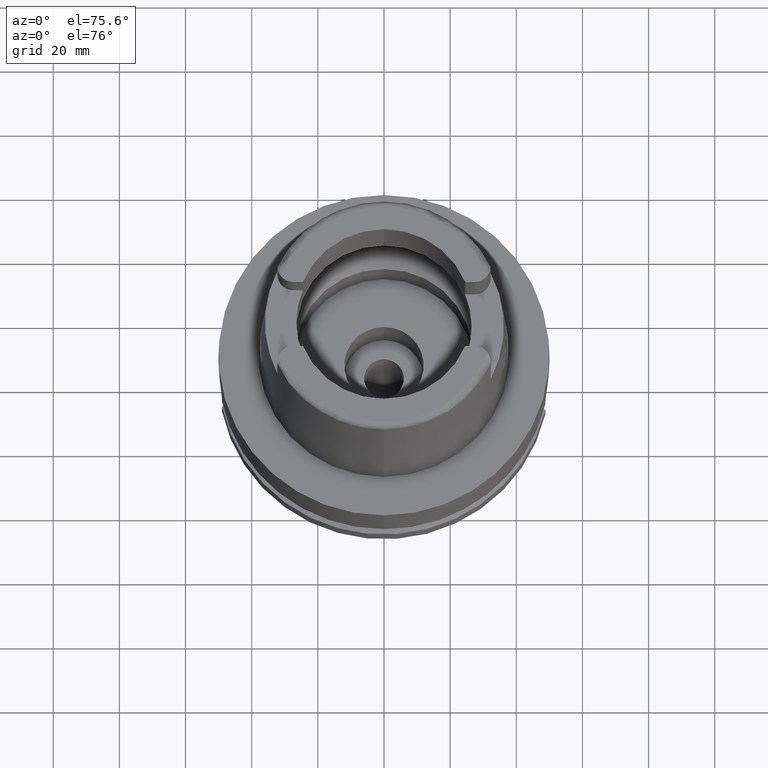
[diagram: clean part render]
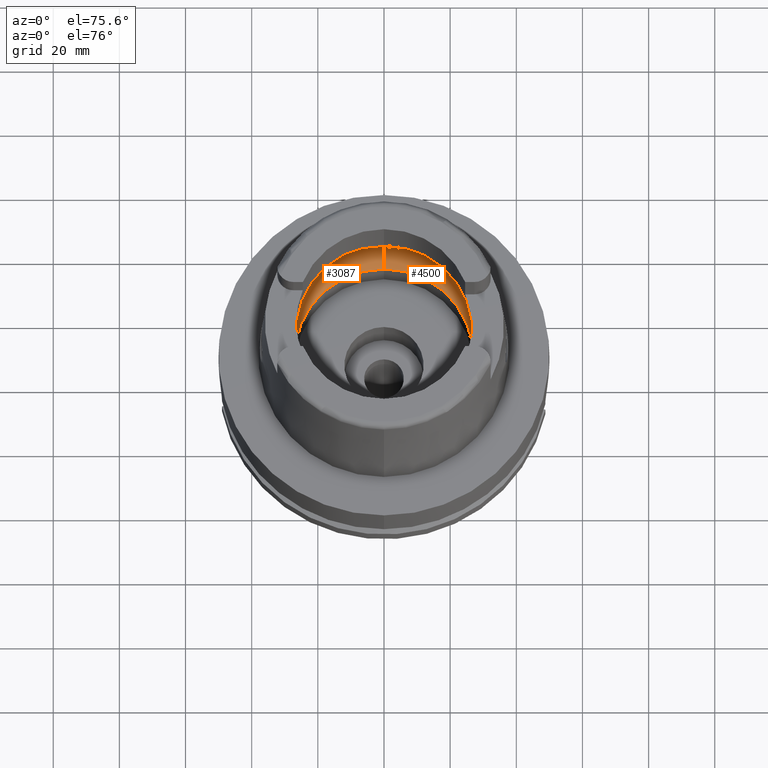
[diagram: same view with one multi-face feature highlighted, each face labeled with its STEP entity id]
A machine part, auxiliary view. The highlighted faces form ONE feature: a constant-radius fillet chain: 2 tangent blend faces with common blend radius 12 mm. The faces share edges in the B-rep.
Their STEP definitions:
[1] entity #4500 (Torus):
#33 = CARTESIAN_POINT ( 'NONE',  ( 0.0000000000000000000, 0.0000000000000000000, 9.496624327025999790 ) ) ;
#90 = DIRECTION ( 'NONE',  ( 0.0000000000000000000, 0.0000000000000000000, -1.000000000000000000 ) ) ;
#92 = CARTESIAN_POINT ( 'NONE',  ( 0.0000000000000000000, 0.0000000000000000000, 9.496624327025999790 ) ) ;
#177 = FACE_OUTER_BOUND ( 'NONE', #369, .T. ) ;
#223 = ORIENTED_EDGE ( 'NONE', *, *, #785, .F. ) ;
#264 = EDGE_CURVE ( 'NONE', #3488, #870, #3285, .T. ) ;
#369 = EDGE_LOOP ( 'NONE', ( #3491, #4534, #223, #3378, #2570, #2620, #1874 ) ) ;
#385 = DIRECTION ( 'NONE',  ( 0.0000000000000000000, 0.0000000000000000000, 1.000000000000000000 ) ) ;
#444 = EDGE_CURVE ( 'NONE', #964, #2511, #4327, .T. ) ;
#487 = DIRECTION ( 'NONE',  ( -1.000000000000000000, 0.0000000000000000000, 0.0000000000000000000 ) ) ;
#543 = CARTESIAN_POINT ( 'NONE',  ( 31.48971910754000447, 0.0000000000000000000, 9.000000000000000000 ) ) ;
#718 = CARTESIAN_POINT ( 'NONE',  ( 31.48971910753999026, -0.8697454017312684638, 8.999999999999998224 ) ) ;
#785 = EDGE_CURVE ( 'NONE', #2511, #3258, #3958, .T. ) ;
#832 = B_SPLINE_CURVE_WITH_KNOTS ( 'NONE', 3,
 ( #3060, #4162, #3383, #3741 ),
 .UNSPECIFIED., .F., .F.,
 ( 4, 4 ),
 ( 0.0000000000000000000, 1.000000000000000000 ),
 .UNSPECIFIED. ) ;
#870 = VERTEX_POINT ( 'NONE', #1261 ) ;
#891 = CARTESIAN_POINT ( 'NONE',  ( 0.0000000000000000000, 31.50000000000000000, 9.496624327025999790 ) ) ;
#910 = CARTESIAN_POINT ( 'NONE',  ( 0.0000000000000000000, -26.89999999999999858, 0.04993178413032000468 ) ) ;
#964 = VERTEX_POINT ( 'NONE', #910 ) ;
#980 = CARTESIAN_POINT ( 'NONE',  ( 31.40918884336000616, 2.390158196043999705, 9.496624327025999790 ) ) ;
#1115 = EDGE_CURVE ( 'NONE', #1277, #3488, #832, .T. ) ;
#1261 = CARTESIAN_POINT ( 'NONE',  ( 31.40918884336000616, -2.390158196043999705, 9.496624327025999790 ) ) ;
#1277 = VERTEX_POINT ( 'NONE', #980 ) ;
#1292 = AXIS2_PLACEMENT_3D ( 'NONE', #3619, #1974, #5363 ) ;
#1498 = CIRCLE ( 'NONE', #3176, 31.49999999999998934 ) ;
#1615 = CARTESIAN_POINT ( 'NONE',  ( 0.0000000000000000000, 0.0000000000000000000, 0.04993178413033000362 ) ) ;
#1795 = DIRECTION ( 'NONE',  ( 0.0000000000000000000, 1.000000000000000000, 0.0000000000000000000 ) ) ;
#1874 = ORIENTED_EDGE ( 'NONE', *, *, #264, .F. ) ;
#1974 = DIRECTION ( 'NONE',  ( 1.000000000000000000, 0.0000000000000000000, 0.0000000000000000000 ) ) ;
#1986 = CARTESIAN_POINT ( 'NONE',  ( 0.0000000000000000000, 26.89999999999999858, 0.04993178413033000362 ) ) ;
#2010 = CIRCLE ( 'NONE', #2640, 31.50000000000000000 ) ;
#2187 = CARTESIAN_POINT ( 'NONE',  ( 0.0000000000000000000, -31.50000000000000000, 9.496624327025999790 ) ) ;
#2511 = VERTEX_POINT ( 'NONE', #1986 ) ;
#2570 = ORIENTED_EDGE ( 'NONE', *, *, #5325, .T. ) ;
#2620 = ORIENTED_EDGE ( 'NONE', *, *, #2715, .F. ) ;
#2640 = AXIS2_PLACEMENT_3D ( 'NONE', #2664, #4776, #1795 ) ;
#2664 = CARTESIAN_POINT ( 'NONE',  ( 0.0000000000000000000, 0.0000000000000000000, 9.496624327025999790 ) ) ;
#2689 = CARTESIAN_POINT ( 'NONE',  ( 0.0000000000000000000, -19.50000000000000000, 9.496624327025999790 ) ) ;
#2711 = DIRECTION ( 'NONE',  ( 0.0000000000000000000, 0.0000000000000000000, 1.000000000000000000 ) ) ;
#2715 = EDGE_CURVE ( 'NONE', #870, #3426, #1498, .T. ) ;
#2726 = CIRCLE ( 'NONE', #5494, 11.99999999999999822 ) ;
#3006 = DIRECTION ( 'NONE',  ( 0.0000000000000000000, -1.000000000000000000, 0.0000000000000000000 ) ) ;
#3060 = CARTESIAN_POINT ( 'NONE',  ( 31.40918884336000616, 2.390158196043999705, 9.496624327025999790 ) ) ;
#3176 = AXIS2_PLACEMENT_3D ( 'NONE', #33, #90, #3471 ) ;
#3258 = VERTEX_POINT ( 'NONE', #891 ) ;
#3285 = B_SPLINE_CURVE_WITH_KNOTS ( 'NONE', 3,
 ( #4204, #718, #4112, #4600 ),
 .UNSPECIFIED., .F., .F.,
 ( 4, 4 ),
 ( 0.0000000000000000000, 1.000000000000000000 ),
 .UNSPECIFIED. ) ;
#3378 = ORIENTED_EDGE ( 'NONE', *, *, #444, .F. ) ;
#3383 = CARTESIAN_POINT ( 'NONE',  ( 31.48971910753999026, 0.8697454017787721314, 9.000000000000001776 ) ) ;
#3426 = VERTEX_POINT ( 'NONE', #2187 ) ;
#3471 = DIRECTION ( 'NONE',  ( 0.9971171061384295209, -0.07587803796965221503, 0.0000000000000000000 ) ) ;
#3488 = VERTEX_POINT ( 'NONE', #543 ) ;
#3491 = ORIENTED_EDGE ( 'NONE', *, *, #1115, .F. ) ;
#3517 = AXIS2_PLACEMENT_3D ( 'NONE', #1615, #385, #3006 ) ;
#3619 = CARTESIAN_POINT ( 'NONE',  ( 0.0000000000000000000, 19.50000000000000000, 9.496624327025999790 ) ) ;
#3741 = CARTESIAN_POINT ( 'NONE',  ( 31.48971910754000447, 0.0000000000000000000, 9.000000000000000000 ) ) ;
#3958 = CIRCLE ( 'NONE', #1292, 11.99999999999999822 ) ;
#4112 = CARTESIAN_POINT ( 'NONE',  ( 31.46287568614665986, -1.684656699965325632, 9.190219625007294724 ) ) ;
#4162 = CARTESIAN_POINT ( 'NONE',  ( 31.46287568614665986, 1.684656700008886121, 9.190219625026216477 ) ) ;
#4204 = CARTESIAN_POINT ( 'NONE',  ( 31.48971910754000447, 0.0000000000000000000, 9.000000000000000000 ) ) ;
#4327 = CIRCLE ( 'NONE', #3517, 26.89999999999999858 ) ;
#4425 = DIRECTION ( 'NONE',  ( 0.0000000000000000000, 1.000000000000000000, 0.0000000000000000000 ) ) ;
#4500 = ADVANCED_FACE ( 'NONE', ( #177 ), #5048, .F. ) ;
#4534 = ORIENTED_EDGE ( 'NONE', *, *, #5476, .F. ) ;
#4600 = CARTESIAN_POINT ( 'NONE',  ( 31.40918884336000616, -2.390158196043999705, 9.496624327025999790 ) ) ;
#4776 = DIRECTION ( 'NONE',  ( 0.0000000000000000000, 0.0000000000000000000, -1.000000000000000000 ) ) ;
#5048 = TOROIDAL_SURFACE ( 'NONE', #5482, 19.50000000000000000, 12.00000000000000000 ) ;
#5271 = DIRECTION ( 'NONE',  ( 0.0000000000000000000, -0.6166666666667049990, -0.7872243785746061429 ) ) ;
#5325 = EDGE_CURVE ( 'NONE', #964, #3426, #2726, .T. ) ;
#5363 = DIRECTION ( 'NONE',  ( 0.0000000000000000000, 0.6166666666667049990, -0.7872243785746061429 ) ) ;
#5476 = EDGE_CURVE ( 'NONE', #3258, #1277, #2010, .T. ) ;
#5482 = AXIS2_PLACEMENT_3D ( 'NONE', #92, #2711, #4425 ) ;
#5494 = AXIS2_PLACEMENT_3D ( 'NONE', #2689, #487, #5271 ) ;
[2] entity #3087 (Torus):
#351 = CARTESIAN_POINT ( 'NONE',  ( 0.0000000000000000000, 0.0000000000000000000, 9.496624327025999790 ) ) ;
#477 = VERTEX_POINT ( 'NONE', #4209 ) ;
#482 = CARTESIAN_POINT ( 'NONE',  ( -31.46287568614665986, -1.684656700029165899, 9.190219625035021878 ) ) ;
#487 = DIRECTION ( 'NONE',  ( -1.000000000000000000, 0.0000000000000000000, 0.0000000000000000000 ) ) ;
#504 = EDGE_LOOP ( 'NONE', ( #3281, #4887, #1091, #3167, #2626, #5142, #4766 ) ) ;
#577 = B_SPLINE_CURVE_WITH_KNOTS ( 'NONE', 3,
 ( #4031, #1504, #4406, #2747 ),
 .UNSPECIFIED., .F., .F.,
 ( 4, 4 ),
 ( 0.0000000000000000000, 1.000000000000000000 ),
 .UNSPECIFIED. ) ;
#785 = EDGE_CURVE ( 'NONE', #2511, #3258, #3958, .T. ) ;
#891 = CARTESIAN_POINT ( 'NONE',  ( 0.0000000000000000000, 31.50000000000000000, 9.496624327025999790 ) ) ;
#910 = CARTESIAN_POINT ( 'NONE',  ( 0.0000000000000000000, -26.89999999999999858, 0.04993178413032000468 ) ) ;
#957 = EDGE_CURVE ( 'NONE', #2511, #964, #1382, .T. ) ;
#964 = VERTEX_POINT ( 'NONE', #910 ) ;
#1091 = ORIENTED_EDGE ( 'NONE', *, *, #957, .F. ) ;
#1255 = EDGE_CURVE ( 'NONE', #2318, #3258, #2448, .T. ) ;
#1262 = CARTESIAN_POINT ( 'NONE',  ( 0.0000000000000000000, 0.0000000000000000000, 9.496624327025999790 ) ) ;
#1292 = AXIS2_PLACEMENT_3D ( 'NONE', #3619, #1974, #5363 ) ;
#1382 = CIRCLE ( 'NONE', #4599, 26.89999999999999858 ) ;
#1504 = CARTESIAN_POINT ( 'NONE',  ( -31.48971910754000447, 0.8697454016785111097, 9.000000000000001776 ) ) ;
#1527 = EDGE_CURVE ( 'NONE', #3426, #3874, #5224, .T. ) ;
#1586 = AXIS2_PLACEMENT_3D ( 'NONE', #351, #2045, #5456 ) ;
#1974 = DIRECTION ( 'NONE',  ( 1.000000000000000000, 0.0000000000000000000, 0.0000000000000000000 ) ) ;
#1986 = CARTESIAN_POINT ( 'NONE',  ( 0.0000000000000000000, 26.89999999999999858, 0.04993178413033000362 ) ) ;
#2001 = EDGE_CURVE ( 'NONE', #477, #2318, #577, .T. ) ;
#2045 = DIRECTION ( 'NONE',  ( 0.0000000000000000000, 0.0000000000000000000, 1.000000000000000000 ) ) ;
#2046 = B_SPLINE_CURVE_WITH_KNOTS ( 'NONE', 3,
 ( #4315, #482, #3887, #2935 ),
 .UNSPECIFIED., .F., .F.,
 ( 4, 4 ),
 ( 0.0000000000000000000, 1.000000000000000000 ),
 .UNSPECIFIED. ) ;
#2155 = DIRECTION ( 'NONE',  ( 0.0000000000000000000, 1.000000000000000000, 0.0000000000000000000 ) ) ;
#2187 = CARTESIAN_POINT ( 'NONE',  ( 0.0000000000000000000, -31.50000000000000000, 9.496624327025999790 ) ) ;
#2318 = VERTEX_POINT ( 'NONE', #3109 ) ;
#2448 = CIRCLE ( 'NONE', #4959, 31.49999999999998934 ) ;
#2511 = VERTEX_POINT ( 'NONE', #1986 ) ;
#2520 = FACE_OUTER_BOUND ( 'NONE', #504, .T. ) ;
#2626 = ORIENTED_EDGE ( 'NONE', *, *, #1255, .F. ) ;
#2689 = CARTESIAN_POINT ( 'NONE',  ( 0.0000000000000000000, -19.50000000000000000, 9.496624327025999790 ) ) ;
#2709 = AXIS2_PLACEMENT_3D ( 'NONE', #1262, #3410, #3829 ) ;
#2726 = CIRCLE ( 'NONE', #5494, 11.99999999999999822 ) ;
#2747 = CARTESIAN_POINT ( 'NONE',  ( -31.40918884336000616, 2.390158196043999705, 9.496624327025999790 ) ) ;
#2935 = CARTESIAN_POINT ( 'NONE',  ( -31.48971910754000447, 0.0000000000000000000, 9.000000000000000000 ) ) ;
#3016 = CARTESIAN_POINT ( 'NONE',  ( 0.0000000000000000000, 0.0000000000000000000, 0.04993178413032000468 ) ) ;
#3087 = ADVANCED_FACE ( 'NONE', ( #2520 ), #5246, .F. ) ;
#3109 = CARTESIAN_POINT ( 'NONE',  ( -31.40918884336000616, 2.390158196043999705, 9.496624327025999790 ) ) ;
#3140 = DIRECTION ( 'NONE',  ( 0.0000000000000000000, 0.0000000000000000000, -1.000000000000000000 ) ) ;
#3167 = ORIENTED_EDGE ( 'NONE', *, *, #785, .T. ) ;
#3258 = VERTEX_POINT ( 'NONE', #891 ) ;
#3281 = ORIENTED_EDGE ( 'NONE', *, *, #1527, .F. ) ;
#3404 = EDGE_CURVE ( 'NONE', #3874, #477, #2046, .T. ) ;
#3410 = DIRECTION ( 'NONE',  ( 0.0000000000000000000, 0.0000000000000000000, -1.000000000000000000 ) ) ;
#3426 = VERTEX_POINT ( 'NONE', #2187 ) ;
#3490 = CARTESIAN_POINT ( 'NONE',  ( -31.40918884336000616, -2.390158196043999705, 9.496624327025999790 ) ) ;
#3619 = CARTESIAN_POINT ( 'NONE',  ( 0.0000000000000000000, 19.50000000000000000, 9.496624327025999790 ) ) ;
#3829 = DIRECTION ( 'NONE',  ( 0.0000000000000000000, -1.000000000000000000, 0.0000000000000000000 ) ) ;
#3874 = VERTEX_POINT ( 'NONE', #3490 ) ;
#3887 = CARTESIAN_POINT ( 'NONE',  ( -31.48971910754000447, -0.8697454018008697885, 8.999999999999998224 ) ) ;
#3958 = CIRCLE ( 'NONE', #1292, 11.99999999999999822 ) ;
#4031 = CARTESIAN_POINT ( 'NONE',  ( -31.48971910754000447, 0.0000000000000000000, 9.000000000000000000 ) ) ;
#4209 = CARTESIAN_POINT ( 'NONE',  ( -31.48971910754000447, 0.0000000000000000000, 9.000000000000000000 ) ) ;
#4311 = DIRECTION ( 'NONE',  ( 0.0000000000000000000, 0.0000000000000000000, 1.000000000000000000 ) ) ;
#4315 = CARTESIAN_POINT ( 'NONE',  ( -31.40918884336000616, -2.390158196043999705, 9.496624327025999790 ) ) ;
#4383 = DIRECTION ( 'NONE',  ( -0.9971171061384295209, 0.07587803796965221503, 0.0000000000000000000 ) ) ;
#4406 = CARTESIAN_POINT ( 'NONE',  ( -31.46287568614665986, 1.684656699916923683, 9.190219624986275093 ) ) ;
#4408 = CARTESIAN_POINT ( 'NONE',  ( 0.0000000000000000000, 0.0000000000000000000, 9.496624327025999790 ) ) ;
#4599 = AXIS2_PLACEMENT_3D ( 'NONE', #3016, #4311, #2155 ) ;
#4766 = ORIENTED_EDGE ( 'NONE', *, *, #3404, .F. ) ;
#4887 = ORIENTED_EDGE ( 'NONE', *, *, #5325, .F. ) ;
#4959 = AXIS2_PLACEMENT_3D ( 'NONE', #4408, #3140, #4383 ) ;
#5142 = ORIENTED_EDGE ( 'NONE', *, *, #2001, .F. ) ;
#5224 = CIRCLE ( 'NONE', #2709, 31.50000000000000000 ) ;
#5246 = TOROIDAL_SURFACE ( 'NONE', #1586, 19.50000000000000000, 12.00000000000000000 ) ;
#5271 = DIRECTION ( 'NONE',  ( 0.0000000000000000000, -0.6166666666667049990, -0.7872243785746061429 ) ) ;
#5325 = EDGE_CURVE ( 'NONE', #964, #3426, #2726, .T. ) ;
#5363 = DIRECTION ( 'NONE',  ( 0.0000000000000000000, 0.6166666666667049990, -0.7872243785746061429 ) ) ;
#5456 = DIRECTION ( 'NONE',  ( 0.0000000000000000000, 1.000000000000000000, 0.0000000000000000000 ) ) ;
#5494 = AXIS2_PLACEMENT_3D ( 'NONE', #2689, #487, #5271 ) ;